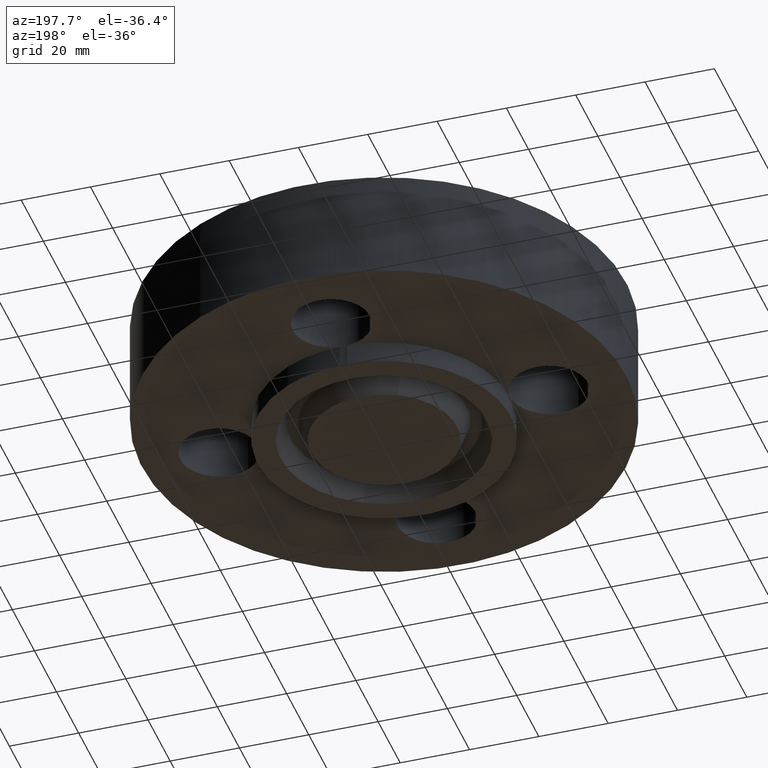
[diagram: clean part render]
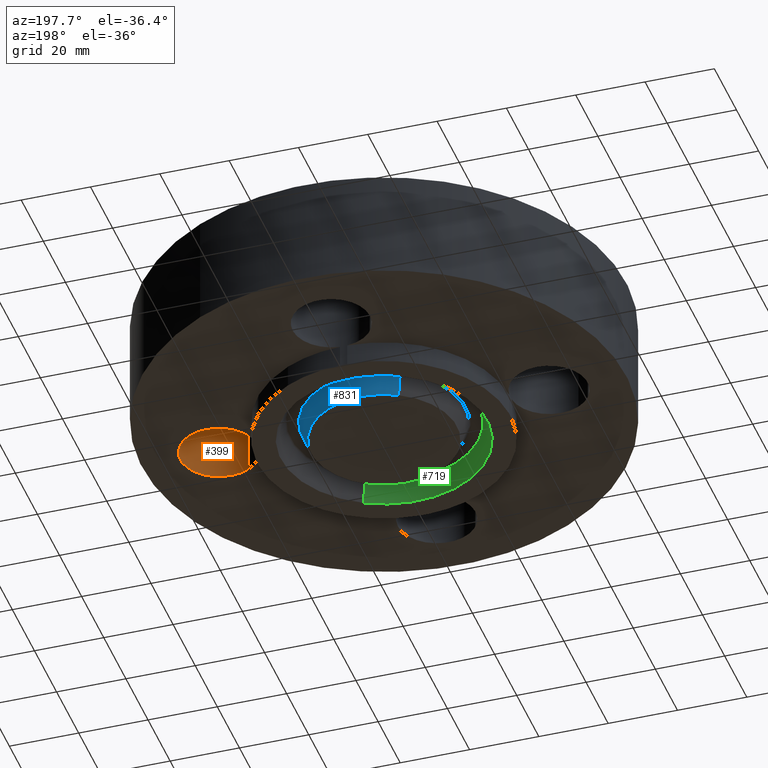
[diagram: same view with three faces highlighted in distinct colors, each labeled with its STEP entity id]
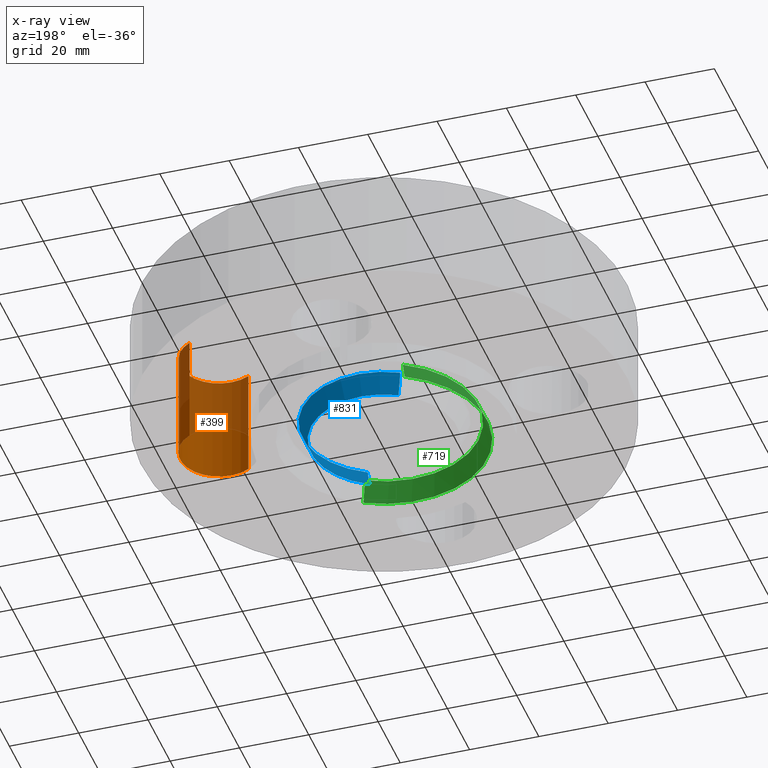
[diagram: x-ray of the same camera — body ghosted, the three highlighted faces saturated]
A machine part, auxiliary view with three faces highlighted in distinct colors.
The next image is the same camera in x-ray (body ghosted, the three faces saturated) — at least one of them is partly hidden behind the body in this view.
Their STEP definitions:

[orange] entity #399 — the highlighted cylindrical surface (partial cylindrical patch) has radius 11.176 mm, axis along (0, -0, -1).
#323=AXIS2_PLACEMENT_3D('Cylinder Axis2P3D',#320,#321,#322) ;
#385=AXIS2_PLACEMENT_3D('Circle Axis2P3D',#383,#384,$) ;
#390=AXIS2_PLACEMENT_3D('Circle Axis2P3D',#388,#389,$) ;
#320=CARTESIAN_POINT('Axis2P3D Location',(1.87500000001,1.14810637421E-016,1.24606299213)) ;
#325=CARTESIAN_POINT('Line Origine',(1.66405276302,-0.386136327233,0.625000000003)) ;
#329=CARTESIAN_POINT('Vertex',(1.66405276302,-0.386136327233,0.)) ;
#331=CARTESIAN_POINT('Vertex',(1.66405276302,-0.386136327233,1.25000000001)) ;
#357=CARTESIAN_POINT('Vertex',(2.08594723699,0.386136327233,0.)) ;
#360=CARTESIAN_POINT('Line Origine',(2.08594723699,0.386136327233,0.625000000003)) ;
#364=CARTESIAN_POINT('Vertex',(2.08594723699,0.386136327233,1.25000000001)) ;
#383=CARTESIAN_POINT('Axis2P3D Location',(1.87500000001,1.14810637421E-016,0.)) ;
#388=CARTESIAN_POINT('Axis2P3D Location',(1.87500000001,1.14810637421E-016,1.25000000001)) ;
#321=DIRECTION('Axis2P3D Direction',(0.,-0.,-0.0393700787402)) ;
#322=DIRECTION('Axis2P3D XDirection',(0.0188750212049,0.0345504945626,-0.)) ;
#326=DIRECTION('Vector Direction',(0.,0.,-0.0393700787402)) ;
#361=DIRECTION('Vector Direction',(0.,0.,-0.0393700787402)) ;
#384=DIRECTION('Axis2P3D Direction',(0.,-0.,-0.0393700787402)) ;
#389=DIRECTION('Axis2P3D Direction',(0.,-0.,-0.0393700787402)) ;
#327=VECTOR('Line Direction',#326,0.0393700787402) ;
#362=VECTOR('Line Direction',#361,0.0393700787402) ;
#394=ORIENTED_EDGE('',*,*,#366,.F.) ;
#395=ORIENTED_EDGE('',*,*,#387,.T.) ;
#396=ORIENTED_EDGE('',*,*,#333,.T.) ;
#397=ORIENTED_EDGE('',*,*,#392,.F.) ;
#399=ADVANCED_FACE('PartBody',(#398),#324,.F.) ;
#386=CIRCLE('generated circle',#385,0.440000000002) ;
#391=CIRCLE('generated circle',#390,0.440000000002) ;
#324=CYLINDRICAL_SURFACE('generated cylinder',#323,0.440000000002) ;
#333=EDGE_CURVE('',#330,#332,#328,.F.) ;
#366=EDGE_CURVE('',#358,#365,#363,.F.) ;
#387=EDGE_CURVE('',#358,#330,#386,.T.) ;
#392=EDGE_CURVE('',#365,#332,#391,.T.) ;
#393=EDGE_LOOP('',(#394,#395,#396,#397)) ;
#398=FACE_OUTER_BOUND('',#393,.T.) ;
#328=LINE('Line',#325,#327) ;
#363=LINE('Line',#360,#362) ;
#330=VERTEX_POINT('',#329) ;
#332=VERTEX_POINT('',#331) ;
#358=VERTEX_POINT('',#357) ;
#365=VERTEX_POINT('',#364) ;

[blue] entity #831 — the highlighted conical surface has half-angle 23 deg.
#42=AXIS2_PLACEMENT_3D('Circle Axis2P3D',#40,#41,$) ;
#781=AXIS2_PLACEMENT_3D('Circle Axis2P3D',#779,#780,$) ;
#813=AXIS2_PLACEMENT_3D('Cone Axis2P3D',#810,#811,#812) ;
#40=CARTESIAN_POINT('Axis2P3D Location',(-1.39870617276E-016,1.39870617276E-016,-0.250000000001)) ;
#44=CARTESIAN_POINT('Vertex',(-0.396964345966,0.726638361248,-0.250000000001)) ;
#46=CARTESIAN_POINT('Vertex',(0.396964345966,-0.726638361248,-0.250000000001)) ;
#776=CARTESIAN_POINT('Vertex',(0.443996713314,-0.812730532203,-0.0188873350169)) ;
#779=CARTESIAN_POINT('Axis2P3D Location',(0.,0.,-0.0188873350169)) ;
#783=CARTESIAN_POINT('Vertex',(-0.443996713314,0.812730532203,-0.0188873350169)) ;
#810=CARTESIAN_POINT('Axis2P3D Location',(0.,0.,-0.310000000001)) ;
#815=CARTESIAN_POINT('Line Origine',(-0.42048052964,0.769684446725,-0.134443667509)) ;
#820=CARTESIAN_POINT('Line Origine',(0.42048052964,-0.769684446725,-0.134443667509)) ;
#41=DIRECTION('Axis2P3D Direction',(0.,0.,-0.0393700787402)) ;
#780=DIRECTION('Axis2P3D Direction',(0.,0.,0.0393700787402)) ;
#811=DIRECTION('Axis2P3D Direction',(0.,0.,0.0393700787402)) ;
#812=DIRECTION('Axis2P3D XDirection',(-0.0188750212049,0.0345504945626,0.)) ;
#816=DIRECTION('Vector Direction',(-0.00737505833565,0.0134999537303,0.0362403485611)) ;
#821=DIRECTION('Vector Direction',(0.00737505833565,-0.0134999537303,0.0362403485611)) ;
#817=VECTOR('Line Direction',#816,0.0393700787402) ;
#822=VECTOR('Line Direction',#821,0.0393700787402) ;
#826=ORIENTED_EDGE('',*,*,#819,.F.) ;
#827=ORIENTED_EDGE('',*,*,#785,.F.) ;
#828=ORIENTED_EDGE('',*,*,#824,.T.) ;
#829=ORIENTED_EDGE('',*,*,#48,.F.) ;
#831=ADVANCED_FACE('PartBody',(#830),#814,.T.) ;
#43=CIRCLE('generated circle',#42,0.828000000003) ;
#782=CIRCLE('generated circle',#781,0.926101505996) ;
#814=CONICAL_SURFACE('Cone',#813,0.802531511031,0.401425727959) ;
#48=EDGE_CURVE('',#45,#47,#43,.T.) ;
#785=EDGE_CURVE('',#777,#784,#782,.T.) ;
#819=EDGE_CURVE('',#784,#45,#818,.F.) ;
#824=EDGE_CURVE('',#777,#47,#823,.F.) ;
#825=EDGE_LOOP('',(#826,#827,#828,#829)) ;
#830=FACE_OUTER_BOUND('',#825,.T.) ;
#818=LINE('Line',#815,#817) ;
#823=LINE('Line',#820,#822) ;
#45=VERTEX_POINT('',#44) ;
#47=VERTEX_POINT('',#46) ;
#777=VERTEX_POINT('',#776) ;
#784=VERTEX_POINT('',#783) ;

[green] entity #719 — the highlighted conical surface has half-angle 23 deg.
#143=AXIS2_PLACEMENT_3D('Circle Axis2P3D',#141,#142,$) ;
#665=AXIS2_PLACEMENT_3D('Circle Axis2P3D',#663,#664,$) ;
#701=AXIS2_PLACEMENT_3D('Cone Axis2P3D',#698,#699,#700) ;
#141=CARTESIAN_POINT('Axis2P3D Location',(-1.04902962957E-016,2.79741234551E-016,-0.250000000001)) ;
#145=CARTESIAN_POINT('Vertex',(0.561886731246,-1.02852676254,-0.250000000001)) ;
#147=CARTESIAN_POINT('Vertex',(-0.561886731246,1.02852676254,-0.250000000001)) ;
#663=CARTESIAN_POINT('Axis2P3D Location',(0.,0.,-0.0188873350169)) ;
#667=CARTESIAN_POINT('Vertex',(-0.514854363898,0.942434591585,-0.0188873350169)) ;
#669=CARTESIAN_POINT('Vertex',(0.514854363898,-0.942434591585,-0.0188873350169)) ;
#698=CARTESIAN_POINT('Axis2P3D Location',(0.,0.,-0.0188873350169)) ;
#703=CARTESIAN_POINT('Line Origine',(-0.538370547572,0.985480677062,-0.134443667509)) ;
#708=CARTESIAN_POINT('Line Origine',(0.538370547572,-0.985480677062,-0.134443667509)) ;
#142=DIRECTION('Axis2P3D Direction',(0.,0.,-0.0393700787402)) ;
#664=DIRECTION('Axis2P3D Direction',(0.,0.,0.0393700787402)) ;
#699=DIRECTION('Axis2P3D Direction',(-0.,-0.,-0.0393700787402)) ;
#700=DIRECTION('Axis2P3D XDirection',(-0.0188750212049,0.0345504945626,0.)) ;
#704=DIRECTION('Vector Direction',(-0.00737505833565,0.0134999537303,-0.0362403485611)) ;
#709=DIRECTION('Vector Direction',(0.00737505833565,-0.0134999537303,-0.0362403485611)) ;
#705=VECTOR('Line Direction',#704,0.0393700787402) ;
#710=VECTOR('Line Direction',#709,0.0393700787402) ;
#714=ORIENTED_EDGE('',*,*,#149,.T.) ;
#715=ORIENTED_EDGE('',*,*,#707,.T.) ;
#716=ORIENTED_EDGE('',*,*,#671,.T.) ;
#717=ORIENTED_EDGE('',*,*,#712,.F.) ;
#719=ADVANCED_FACE('PartBody',(#718),#702,.F.) ;
#144=CIRCLE('generated circle',#143,1.172) ;
#666=CIRCLE('generated circle',#665,1.07389849401) ;
#702=CONICAL_SURFACE('Cone',#701,1.07389849401,0.401425727959) ;
#149=EDGE_CURVE('',#146,#148,#144,.T.) ;
#671=EDGE_CURVE('',#668,#670,#666,.T.) ;
#707=EDGE_CURVE('',#148,#668,#706,.F.) ;
#712=EDGE_CURVE('',#146,#670,#711,.F.) ;
#713=EDGE_LOOP('',(#714,#715,#716,#717)) ;
#718=FACE_OUTER_BOUND('',#713,.T.) ;
#706=LINE('Line',#703,#705) ;
#711=LINE('Line',#708,#710) ;
#146=VERTEX_POINT('',#145) ;
#148=VERTEX_POINT('',#147) ;
#668=VERTEX_POINT('',#667) ;
#670=VERTEX_POINT('',#669) ;